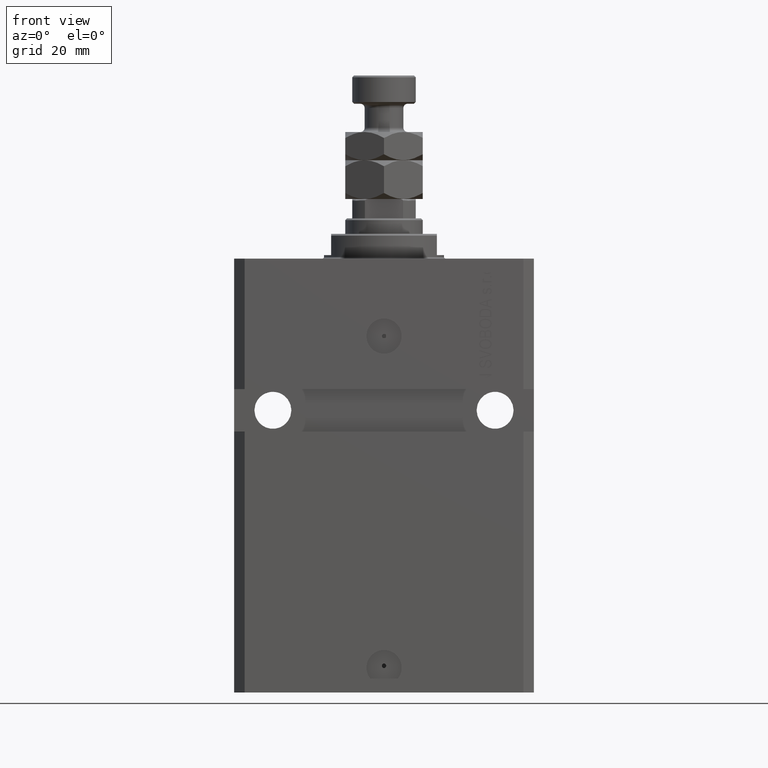
[diagram: clean part render]
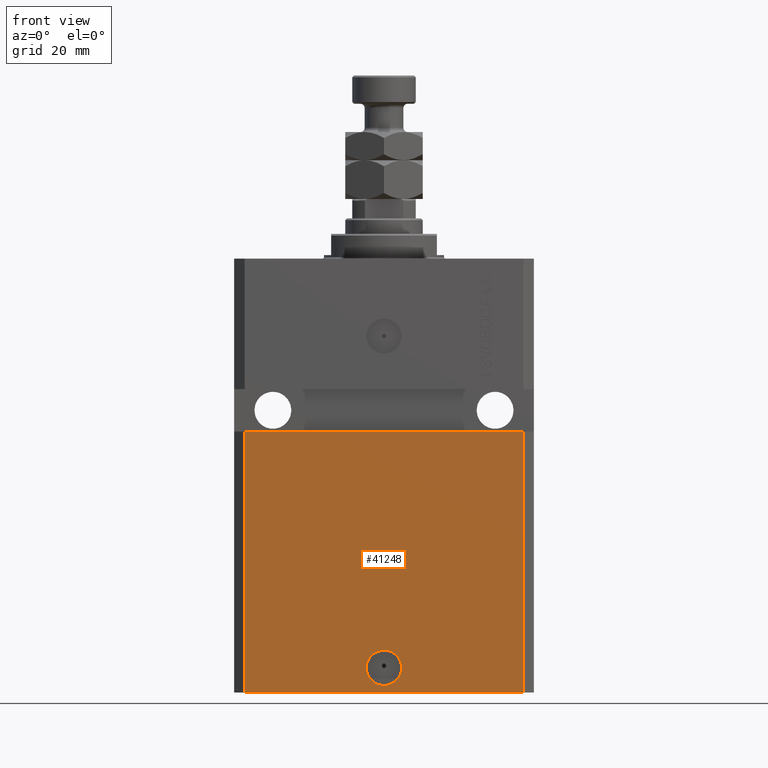
[diagram: same view with one face highlighted and labeled with its STEP entity id]
A machine part, front view. The second image highlights one B-rep face of the part: STEP entity #41248.
In plain terms, the highlighted planar face has unit normal (0, -1, 0).
Its self-contained STEP definition (entity closure, byte-faithful):
#1191 = PLANE ( 'NONE',  #20360 ) ;
#1765 = DIRECTION ( 'NONE',  ( 1.000000000000000000, 0.000000000000000000, 0.000000000000000000 ) ) ;
#3701 = DIRECTION ( 'NONE',  ( 1.000000000000000000, 0.000000000000000000, 0.000000000000000000 ) ) ;
#3788 = DIRECTION ( 'NONE',  ( 1.000000000000000000, 1.632680918566406300E-16, 1.632680918566406300E-16 ) ) ;
#4013 = VERTEX_POINT ( 'NONE', #7401 ) ;
#4927 = DIRECTION ( 'NONE',  ( 0.000000000000000000, -1.000000000000000000, 0.000000000000000000 ) ) ;
#5696 = EDGE_CURVE ( 'NONE', #10739, #34251, #21060, .T. ) ;
#5997 = DIRECTION ( 'NONE',  ( 1.176083712526788232E-16, -1.000000000000000000, 0.000000000000000000 ) ) ;
#6489 = CARTESIAN_POINT ( 'NONE',  ( 39.50000000000000711, -31.50000000000000000, -123.0000000000000000 ) ) ;
#6767 = VECTOR ( 'NONE', #36121, 1000.000000000000000 ) ;
#7401 = CARTESIAN_POINT ( 'NONE',  ( -39.50000000000000711, -31.50000000000000000, -123.0000000000000000 ) ) ;
#9256 = DIRECTION ( 'NONE',  ( 1.176083712526788232E-16, -1.000000000000000000, 0.000000000000000000 ) ) ;
#9481 = EDGE_CURVE ( 'NONE', #12053, #39540, #33123, .T. ) ;
#9740 = DIRECTION ( 'NONE',  ( 1.000000000000000000, 0.000000000000000000, 0.000000000000000000 ) ) ;
#9882 = LINE ( 'NONE', #26051, #11419 ) ;
#10205 = CARTESIAN_POINT ( 'NONE',  ( -39.50000000000000000, -31.50000000000000711, -48.99999999999999289 ) ) ;
#10561 = AXIS2_PLACEMENT_3D ( 'NONE', #36124, #9256, #9740 ) ;
#10739 = VERTEX_POINT ( 'NONE', #31350 ) ;
#11419 = VECTOR ( 'NONE', #29549, 1000.000000000000000 ) ;
#12053 = VERTEX_POINT ( 'NONE', #15596 ) ;
#14484 = CARTESIAN_POINT ( 'NONE',  ( -5.000000000000006217, -31.50000000000000000, -115.9999999999999858 ) ) ;
#15436 = ORIENTED_EDGE ( 'NONE', *, *, #5696, .F. ) ;
#15555 = EDGE_LOOP ( 'NONE', ( #22055, #42706, #26386, #27784 ) ) ;
#15596 = CARTESIAN_POINT ( 'NONE',  ( 39.50000000000000711, -31.50000000000000000, -123.0000000000000000 ) ) ;
#16648 = FACE_OUTER_BOUND ( 'NONE', #15555, .T. ) ;
#18103 = EDGE_CURVE ( 'NONE', #4013, #12053, #18167, .T. ) ;
#18167 = LINE ( 'NONE', #41811, #18173 ) ;
#18173 = VECTOR ( 'NONE', #3701, 1000.000000000000000 ) ;
#20360 = AXIS2_PLACEMENT_3D ( 'NONE', #34825, #4927, #31095 ) ;
#20706 = CARTESIAN_POINT ( 'NONE',  ( 0.000000000000000000, -31.50000000000000000, -115.9999999999999858 ) ) ;
#21060 = CIRCLE ( 'NONE', #45707, 5.000000000000006217 ) ;
#22055 = ORIENTED_EDGE ( 'NONE', *, *, #25613, .F. ) ;
#23169 = EDGE_LOOP ( 'NONE', ( #15436, #45909 ) ) ;
#25479 = VECTOR ( 'NONE', #3788, 1000.000000000000000 ) ;
#25613 = EDGE_CURVE ( 'NONE', #29890, #39540, #37917, .T. ) ;
#26051 = CARTESIAN_POINT ( 'NONE',  ( -39.50000000000000711, -31.50000000000000000, -123.0000000000000000 ) ) ;
#26386 = ORIENTED_EDGE ( 'NONE', *, *, #18103, .T. ) ;
#27784 = ORIENTED_EDGE ( 'NONE', *, *, #9481, .T. ) ;
#29549 = DIRECTION ( 'NONE',  ( 0.000000000000000000, 0.000000000000000000, 1.000000000000000000 ) ) ;
#29890 = VERTEX_POINT ( 'NONE', #10205 ) ;
#30703 = EDGE_CURVE ( 'NONE', #34251, #10739, #43951, .T. ) ;
#31095 = DIRECTION ( 'NONE',  ( 0.000000000000000000, -0.000000000000000000, -1.000000000000000000 ) ) ;
#31350 = CARTESIAN_POINT ( 'NONE',  ( 5.000000000000006217, -31.50000000000000000, -115.9999999999999858 ) ) ;
#31501 = CARTESIAN_POINT ( 'NONE',  ( 39.50000000000001421, -31.49999999999999289, -48.99999999999997868 ) ) ;
#32264 = EDGE_CURVE ( 'NONE', #4013, #29890, #9882, .T. ) ;
#33123 = LINE ( 'NONE', #6489, #6767 ) ;
#34251 = VERTEX_POINT ( 'NONE', #14484 ) ;
#34825 = CARTESIAN_POINT ( 'NONE',  ( -39.50000000000000711, -31.50000000000000000, -123.0000000000000000 ) ) ;
#36121 = DIRECTION ( 'NONE',  ( 0.000000000000000000, 0.000000000000000000, 1.000000000000000000 ) ) ;
#36124 = CARTESIAN_POINT ( 'NONE',  ( 0.000000000000000000, -31.50000000000000000, -115.9999999999999858 ) ) ;
#37917 = LINE ( 'NONE', #48646, #25479 ) ;
#39540 = VERTEX_POINT ( 'NONE', #31501 ) ;
#41248 = ADVANCED_FACE ( 'NONE', ( #47283, #16648 ), #1191, .T. ) ;
#41811 = CARTESIAN_POINT ( 'NONE',  ( -39.50000000000000711, -31.50000000000000000, -123.0000000000000000 ) ) ;
#42706 = ORIENTED_EDGE ( 'NONE', *, *, #32264, .F. ) ;
#43951 = CIRCLE ( 'NONE', #10561, 5.000000000000006217 ) ;
#45707 = AXIS2_PLACEMENT_3D ( 'NONE', #20706, #5997, #1765 ) ;
#45909 = ORIENTED_EDGE ( 'NONE', *, *, #30703, .F. ) ;
#47283 = FACE_BOUND ( 'NONE', #23169, .T. ) ;
#48646 = CARTESIAN_POINT ( 'NONE',  ( -42.50000000000000000, -31.50000000000000711, -48.99999999999999289 ) ) ;